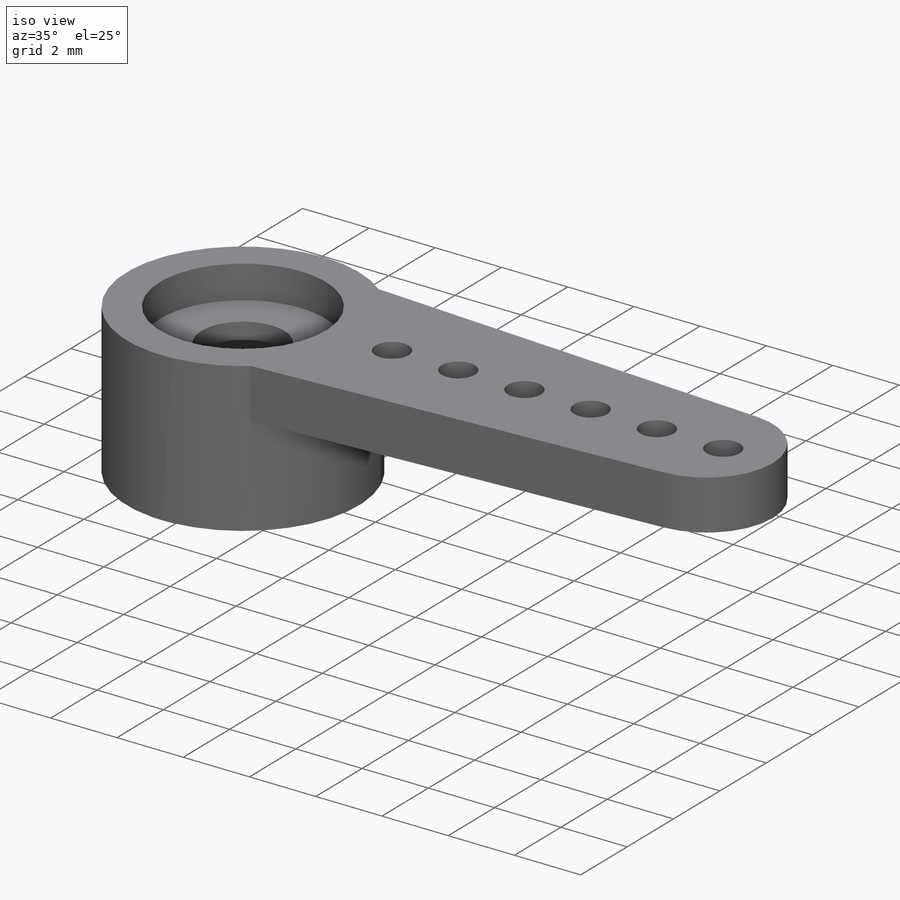
[diagram: iso view]
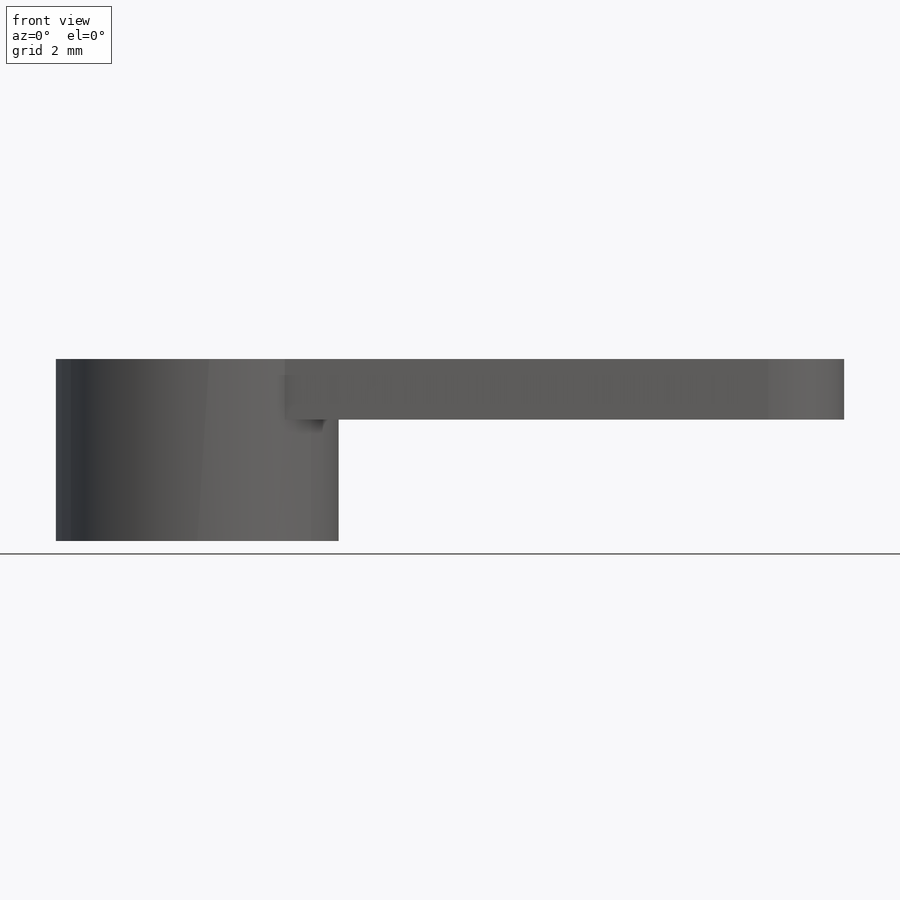
[diagram: front view]
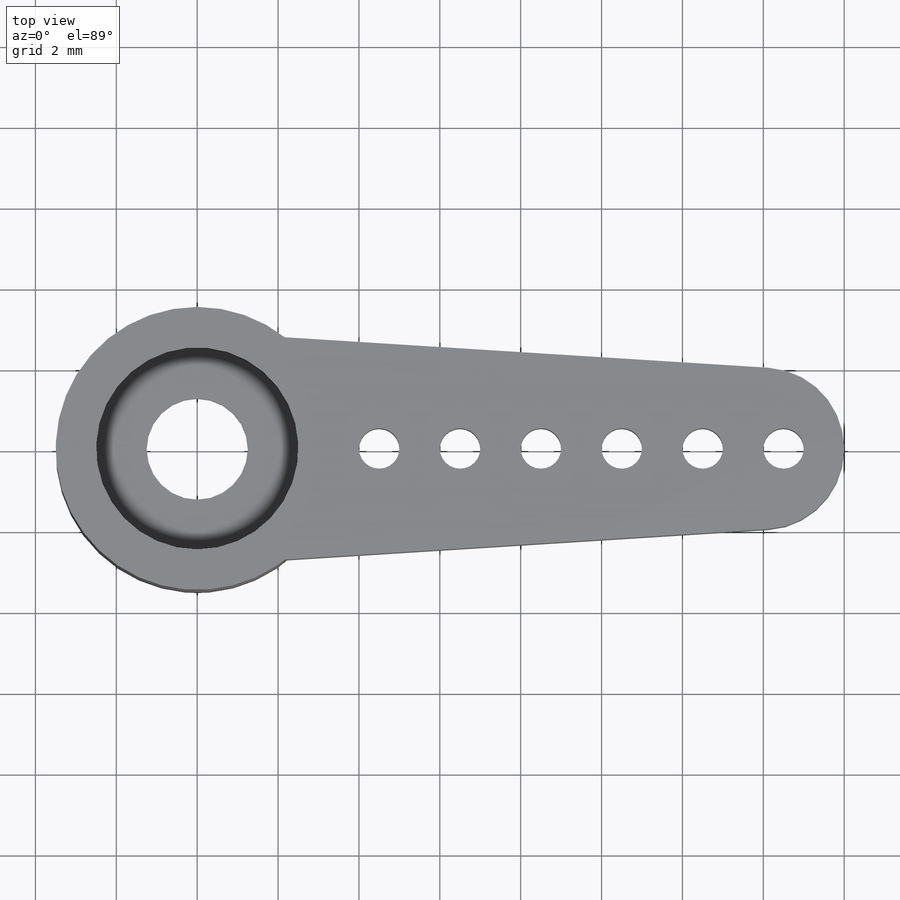
[diagram: top view]
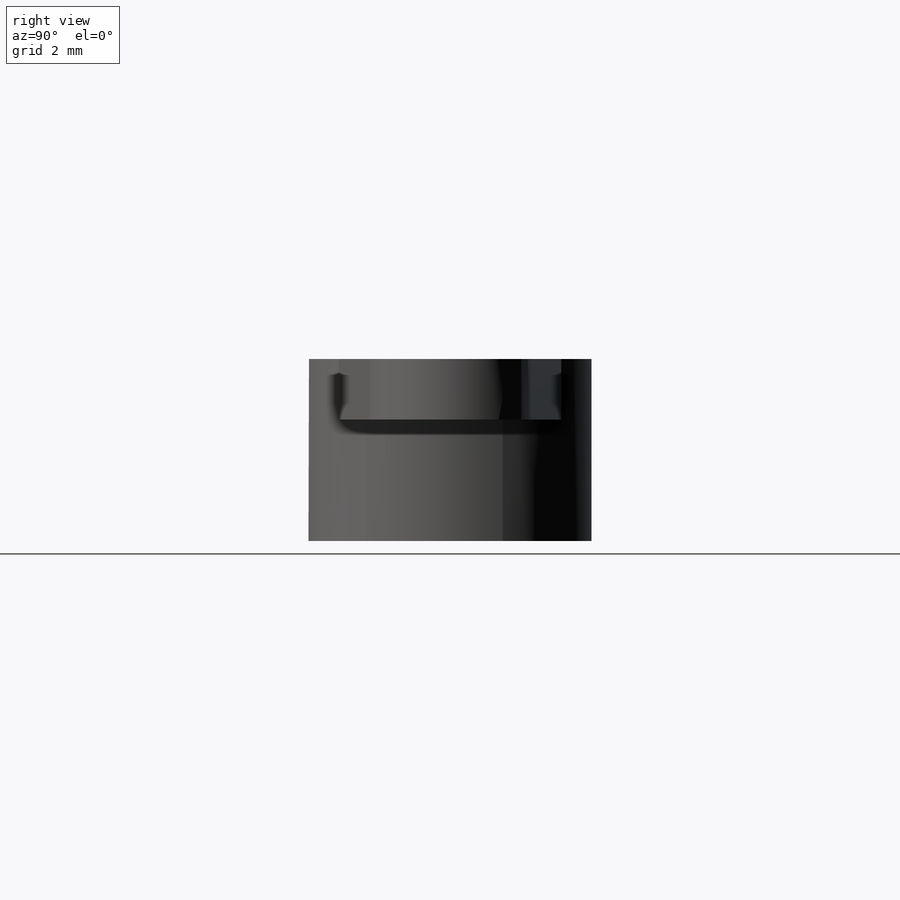
[diagram: right view]
SOLIDWORKS PART (.sldprt)
format: sldprt  version: not decoded by parser v0  size: 182,272 bytes
history: native  units: mm
features: sketch x6, cut_extrude x4, extrude x2, material x1 (+12 scaffold rows collapsed)
feature tree (25):
  scaffold x12  (default folders/planes/origin — collapsed)
  material  "Material <not specified>"
  sketch  "Sketch1"  dims[D1=7.0mm]
  extrude  "Boss-Extrude1"  Depth=4.5mm
  sketch  "Sketch2"  dims[D1=5.0mm]
  cut_extrude  "Cut-Extrude1"  Depth=1mm
  sketch  "Sketch3"  dims[D1=5.0mm]
  cut_extrude  "Cut-Extrude2"  Depth=3mm
  sketch  "Sketch4"  dims[D1=2.5mm]
  cut_extrude  "Cut-Extrude3"  [1 undecoded]
  sketch  "Sketch5"  dims[c1.D1=7.0mm c1.D3=2.0mm c2.D1=19.5mm c2.D2=5.5mm]
  extrude  "Boss-Extrude2"  Depth=1.5mm
  sketch  "Sketch6"  dims[D3=1.0mm D1=10.0mm D2=1.5mm]
  cut_extrude  "Cut-Extrude4"  [1 undecoded]
decode coverage: 10 of 12 modeling features carry decoded parameters
note: 2 parameter values undecoded
note: suppression state not decoded; provenance and decode notes live in map.json
